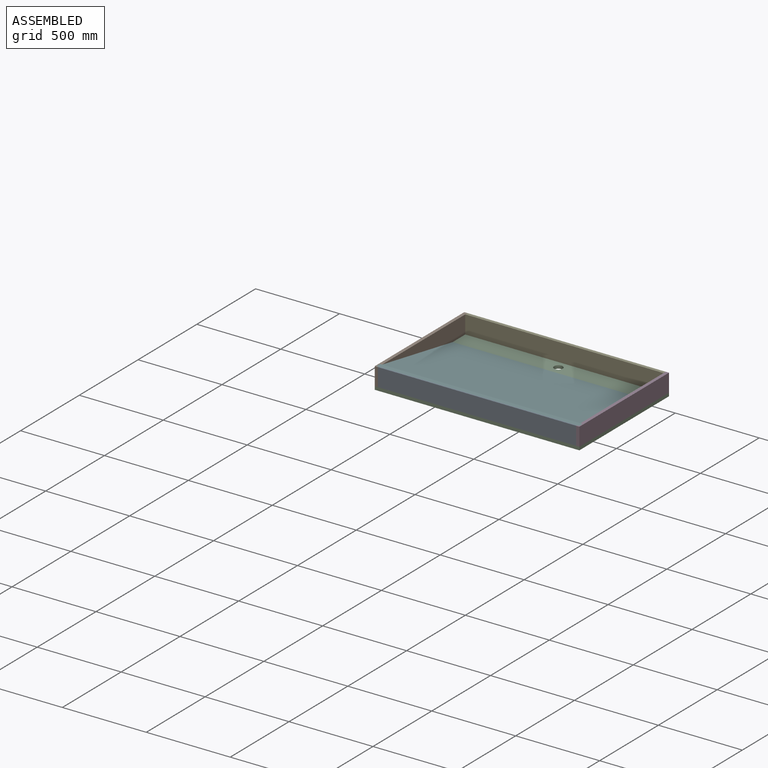
[diagram: assembled view]
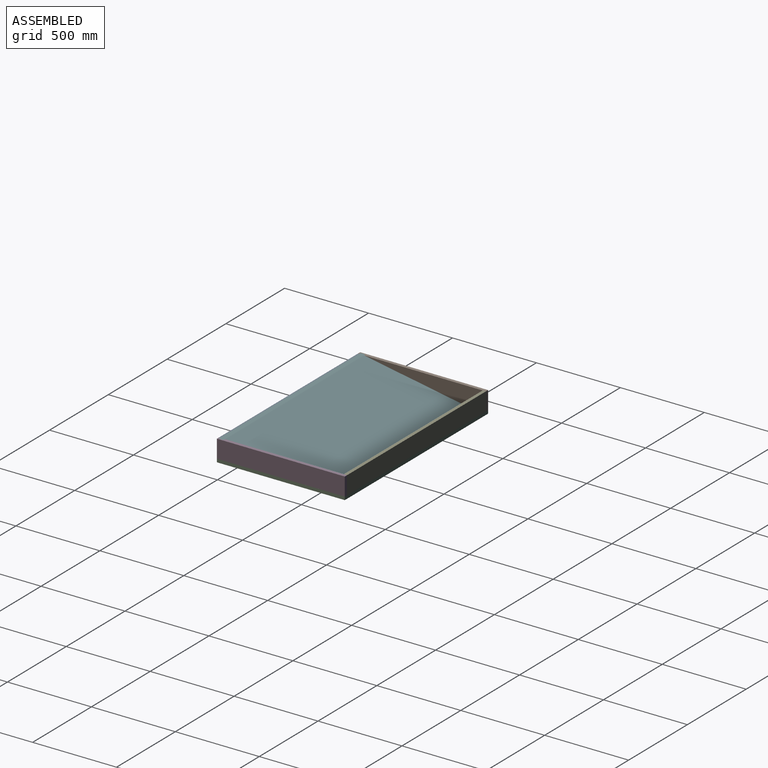
[diagram: assembled view, second angle]
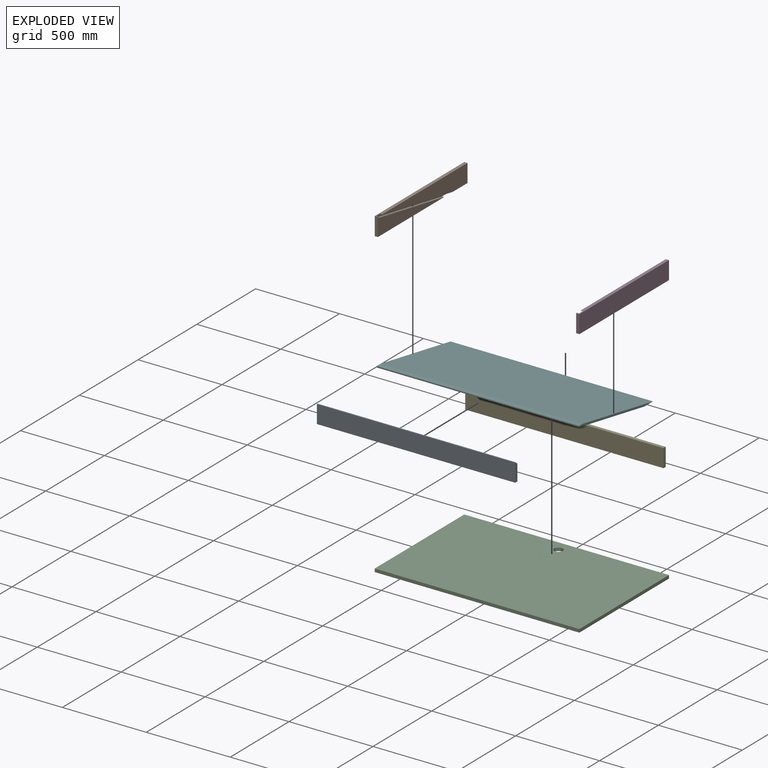
[diagram: exploded view]
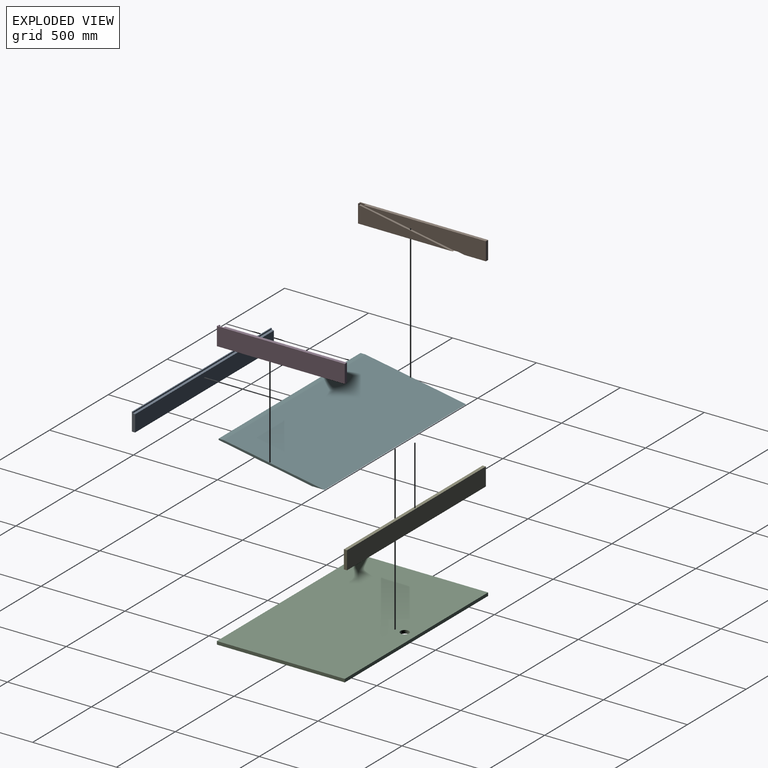
[diagram: exploded view, second angle]
ASSEMBLY  parts=6 mates=5
PART A: 8 faces, bbox 1181.1x19.1x108 mm
  f0: plane 107.95x19.05mm, normal (1,0,0), area 1945.8mm2, adj f1,f2,f4,f5,f6,f7
  f1: plane 1181.1x107.95mm, normal (0,-1,0), area 127499.7mm2, adj f0,f3,f4,f5
  f2: plane 1181.1x98.12mm, normal (0,1,0), area 115889.8mm2, adj f0,f3,f5,f7
  f3: plane 107.95x19.05mm, normal (-1,0,0), area 1945.8mm2, adj f1,f2,f4,f5,f6,f7
  f4: plane 1181.1x6.35mm, normal (0,0,1), area 7500mm2, adj f0,f1,f3,f6
  f5: plane 1181.1x19.05mm, normal (0,0,-1), area 22500mm2, adj f0,f1,f2,f3
  f6: plane 1181.1x7.59mm, normal (0,1,0), area 8970mm2, adj f0,f3,f4,f7
  f7: plane 1181.1x12.7mm, normal (0,0.17,0.98), area 15230.5mm2, adj f0,f2,f3,f6
PART B: 11 faces, bbox 19.1x762x108 mm
  f0: plane 557.76x100.36mm, normal (0,0.18,0.98), area 7197.3mm2, adj f1,f2,f8,f10
  f1: plane 629.47x107.95mm, normal (1,0,0), area 7581.6mm2, adj f0,f3,f8,f9,f10
  f2: plane 564.11x107.95mm, normal (1,0,0), area 28672.5mm2, adj f0,f3,f4,f8,f10
  f3: plane 762x19.05mm, normal (0,0,1), area 14141.3mm2, adj f1,f2,f4,f5,f6,f7,f9,f10
  f4: plane 107.95x19.05mm, normal (0,-1,0), area 2056.4mm2, adj f2,f3,f7,f8
  f5: plane 726.14x107.95mm, normal (1,0,0), area 46003.8mm2, adj f3,f6,f8,f9
  f6: plane 107.95x19.05mm, normal (0,1,0), area 2056.4mm2, adj f3,f5,f7,f8
  f7: plane 762x107.95mm, normal (-1,0,0), area 82257.9mm2, adj f3,f4,f6,f8
  f8: plane 762x19.05mm, normal (0,0,-1), area 13605.3mm2, adj f0,f1,f2,f4,f5,f6,f7,f9
  f9: plane 599.97x107.95mm, normal (0,-0.18,-0.98), area 7741.9mm2, adj f1,f3,f5,f8
  f10: plane 12.7x7.59mm, normal (0,1,0), area 96.5mm2, adj f0,f1,f2,f3
PART C: 7 faces, bbox 1219.2x762x19.1 mm
  f0: plane 1219.2x19.05mm, normal (0,-1,0), area 23225.8mm2, adj f1,f4,f5,f6
  f1: plane 762x19.05mm, normal (1,0,0), area 14516.1mm2, adj f0,f2,f5,f6
  f2: plane 1219.2x19.05mm, normal (0,1,0), area 23225.8mm2, adj f1,f4,f5,f6
  f3: cylinder r=25.4mm len=50.8mm, axis (0,0,-1), area 3040.2mm2, adj f5,f6
  f4: plane 762x19.05mm, normal (-1,0,0), area 14516.1mm2, adj f0,f2,f5,f6
  f5: plane 1219.2x762mm, normal (0,0,1), area 927003.6mm2, adj f0,f1,f2,f3,f4
  f6: plane 1219.2x762mm, normal (0,0,-1), area 927003.6mm2, adj f0,f1,f2,f3,f4
PART D: 11 faces, bbox 19.1x762x108 mm
  f0: plane 557.76x100.36mm, normal (0,0.18,0.98), area 7197.3mm2, adj f1,f7,f9,f10
  f1: plane 564.11x107.95mm, normal (-1,0,0), area 28672.5mm2, adj f0,f2,f6,f7,f10
  f2: plane 107.95x19.05mm, normal (0,-1,0), area 2056.4mm2, adj f1,f3,f6,f7
  f3: plane 762x107.95mm, normal (1,0,0), area 82257.9mm2, adj f2,f4,f6,f7
  f4: plane 107.95x19.05mm, normal (0,1,0), area 2056.4mm2, adj f3,f5,f6,f7
  f5: plane 726.14x107.95mm, normal (-1,0,0), area 46003.8mm2, adj f4,f6,f7,f8
  f6: plane 762x19.05mm, normal (0,0,1), area 14141.3mm2, adj f1,f2,f3,f4,f5,f8,f9,f10
  f7: plane 762x19.05mm, normal (0,0,-1), area 13605.3mm2, adj f0,f1,f2,f3,f4,f5,f8,f9
  f8: plane 599.97x107.95mm, normal (0,-0.18,-0.98), area 7741.9mm2, adj f5,f6,f7,f9
  f9: plane 629.47x107.95mm, normal (-1,0,0), area 7581.6mm2, adj f0,f6,f7,f8,f10
  f10: plane 12.7x7.59mm, normal (0,1,0), area 96.5mm2, adj f0,f1,f6,f9
PART E: 6 faces, bbox 1181.1x19.1x108 mm
  f0: plane 1181.1x107.95mm, normal (0,-1,0), area 127499.7mm2, adj f1,f3,f4,f5
  f1: plane 107.95x19.05mm, normal (1,0,0), area 2056.4mm2, adj f0,f2,f4,f5
  f2: plane 1181.1x107.95mm, normal (0,1,0), area 127499.7mm2, adj f1,f3,f4,f5
  f3: plane 107.95x19.05mm, normal (-1,0,0), area 2056.4mm2, adj f0,f2,f4,f5
  f4: plane 1181.1x19.05mm, normal (0,0,1), area 22500mm2, adj f0,f1,f2,f3
  f5: plane 1181.1x19.05mm, normal (0,0,-1), area 22500mm2, adj f0,f1,f2,f3
PART F: 7 faces, bbox 1206.5x629.5x108 mm
  f0: plane 1206.5x557.76mm, normal (0,0.18,-0.98), area 683739.7mm2, adj f3,f4,f5,f6
  f1: plane 1206.5x29.51mm, normal (0,0,1), area 35602.4mm2, adj f2,f4,f5,f6
  f2: plane 1206.5x599.97mm, normal (0,-0.18,0.98), area 735482.4mm2, adj f1,f3,f4,f5
  f3: plane 1206.5x71.72mm, normal (0,0,-1), area 86527.3mm2, adj f0,f2,f4,f5
  f4: plane 629.47x107.95mm, normal (1,0,0), area 7581.6mm2, adj f0,f1,f2,f3,f6
  f5: plane 629.47x107.95mm, normal (-1,0,0), area 7581.6mm2, adj f0,f1,f2,f3,f6
  f6: plane 1206.5x7.59mm, normal (0,1,0), area 9162.8mm2, adj f0,f1,f4,f5
PLACE A t=(-11.49,-374.3,327.8)mm
PLACE B t=(-611.56,-2.83,327.8)mm
PLACE C t=(-11.49,-2.83,308.75)mm
PLACE D t=(588.59,-2.83,327.8)mm
PLACE E t=(-11.49,368.65,327.8)mm
PLACE F rot(axis=(0,0,1),180deg) t=(-11.49,-41.63,375)mm
MATE fastened B.f8 <-> C.f5  axis (0,0,-1) through (-621.09,-2.83,327.8)mm
MATE fastened D.f7 <-> C.f5  axis (0,0,-1) through (598.11,-2.83,327.8)mm
MATE fastened F.f5 <-> D.f9  axis (1,0,0) through (591.76,-362.72,435.75)mm
MATE fastened E.f5 <-> C.f5  axis (0,0,-1) through (-11.49,378.17,327.8)mm
MATE fastened A.f5 <-> C.f5  axis (0,0,-1) through (-11.49,-383.83,327.8)mm
